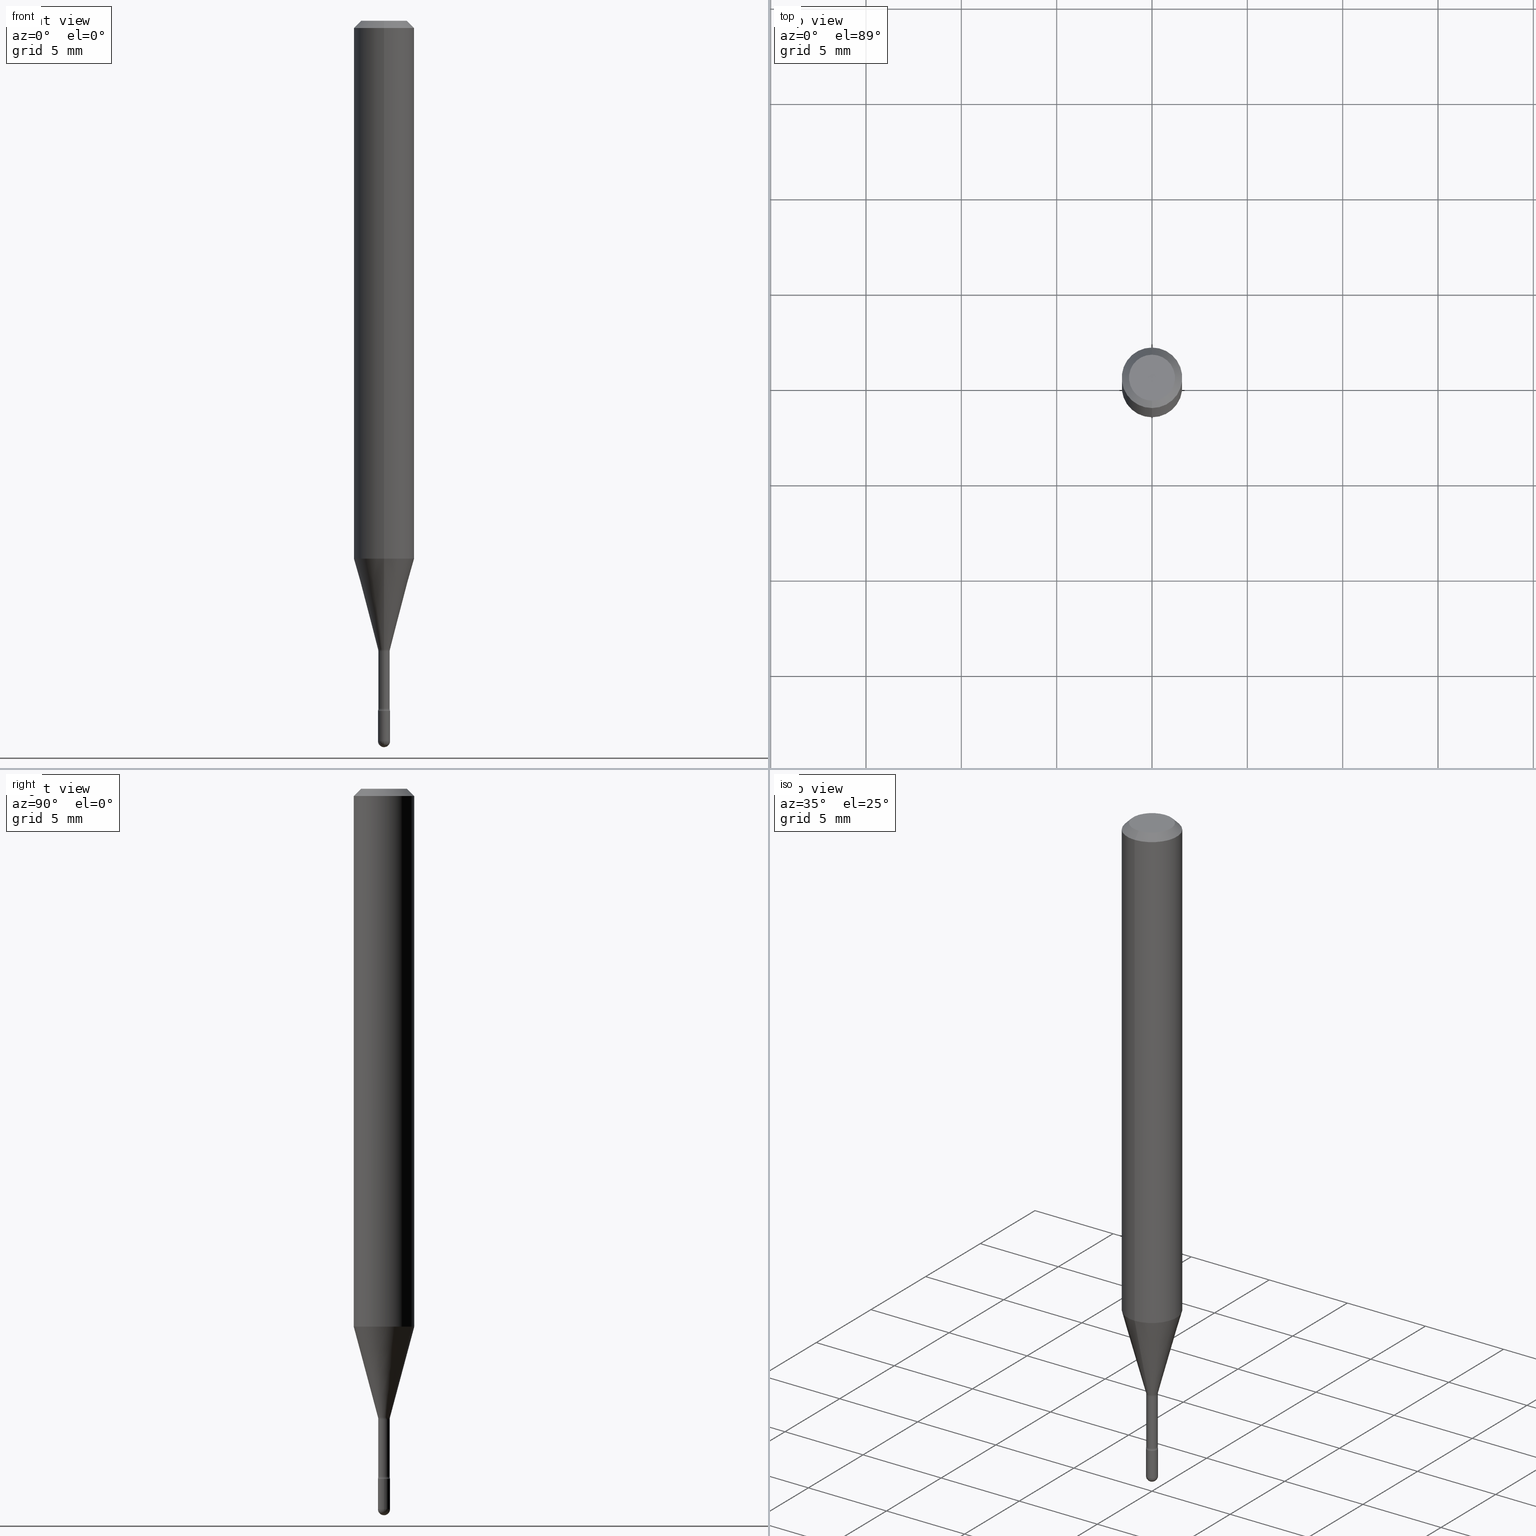
[diagram: canonical four-view strip — front | top / right | iso, engineering-drawing reading convention]
A machine part, canonical four-view strip (front | top / right | iso — engineering-drawing reading convention). The complete STEP part file that produces these views, byte-faithful:
ISO-10303-21;
HEADER;
FILE_DESCRIPTION (( 'STEP AP203' ),
    '1' );
FILE_NAME ('03700.STEP',
    '2024-04-09T20:12:33',
    ( '' ),
    ( '' ),
    'SwSTEP 2.0',
    'SolidWorks 2023',
    '' );
FILE_SCHEMA (( 'CONFIG_CONTROL_DESIGN' ));
ENDSEC;

DATA;
#1 = DIRECTION ( 'NONE',  ( -2.445362175932988378E-29, 3.491634039433238901E-15, 1.000000000000000000 ) ) ;
#2 = ORIENTED_EDGE ( 'NONE', *, *, #303, .F. ) ;
#3 = CARTESIAN_POINT ( 'NONE',  ( 8.348877145184650657E-17, 0.01174999999999545332, -1.301974787463811012 ) ) ;
#4 = DIRECTION ( 'NONE',  ( 0.000000000000000000, 0.000000000000000000, 1.000000000000000000 ) ) ;
#5 = DIRECTION ( 'NONE',  ( -2.445362175932988378E-29, 3.491634039433238901E-15, 1.000000000000000000 ) ) ;
#6 = ORIENTED_EDGE ( 'NONE', *, *, #193, .T. ) ;
#7 = CYLINDRICAL_SURFACE ( 'NONE', #492, 0.01250000000000000243 ) ;
#8 = ORIENTED_EDGE ( 'NONE', *, *, #446, .T. ) ;
#9 = ORIENTED_EDGE ( 'NONE', *, *, #419, .F. ) ;
#10 = EDGE_CURVE ( 'NONE', #212, #291, #296, .T. ) ;
#11 =( NAMED_UNIT ( * ) SI_UNIT ( $, .STERADIAN. ) SOLID_ANGLE_UNIT ( ) );
#12 = DIRECTION ( 'NONE',  ( -6.982962677686265922E-15, -1.000000000000000000, 0.000000000000000000 ) ) ;
#13 = DIRECTION ( 'NONE',  ( 6.982962677686265922E-15, 1.000000000000000000, -3.483106191921935554E-15 ) ) ;
#14 = CARTESIAN_POINT ( 'NONE',  ( 8.728703347111317935E-17, 0.01249999999999502551, -1.425000000000000266 ) ) ;
#15 = CARTESIAN_POINT ( 'NONE',  ( 3.473339087963991292E-29, -4.959007687372092628E-15, -1.420316251501201332 ) ) ;
#16 = DATE_AND_TIME ( #540, #96 ) ;
#17 = EDGE_CURVE ( 'NONE', #449, #288, #316, .T. ) ;
#18 = AXIS2_PLACEMENT_3D ( 'NONE', #382, #4, #266 ) ;
#19 = APPROVAL_DATE_TIME ( #356, #76 ) ;
#20 = EDGE_CURVE ( 'NONE', #291, #497, #259, .T. ) ;
#21 = CALENDAR_DATE ( 2024, 9, 4 ) ;
#22 = ORIENTED_EDGE ( 'NONE', *, *, #286, .F. ) ;
#23 = CIRCLE ( 'NONE', #59, 0.01250000000000000243 ) ;
#24 = ORIENTED_EDGE ( 'NONE', *, *, #189, .F. ) ;
#25 = AXIS2_PLACEMENT_3D ( 'NONE', #119, #439, #289 ) ;
#26 = EDGE_LOOP ( 'NONE', ( #24, #69, #164, #79 ) ) ;
#27 = CARTESIAN_POINT ( 'NONE',  ( 3.316907271900976096E-16, 0.04749999999999999362, 3.181419317578622669E-17 ) ) ;
#28 = DIRECTION ( 'NONE',  ( 1.000000000000000000, -6.982962677686265922E-15, 4.883557194083112340E-29 ) ) ;
#29 = ADVANCED_FACE ( 'NONE', ( #354 ), #408, .T. ) ;
#30 = VERTEX_POINT ( 'NONE', #185 ) ;
#31 = CIRCLE ( 'NONE', #39, 0.01500000000000001853 ) ;
#32 = CIRCLE ( 'NONE', #341, 0.01174999999999999482 ) ;
#33 = VERTEX_POINT ( 'NONE', #346 ) ;
#34 = DIRECTION ( 'NONE',  ( -6.982962677686265922E-15, -1.000000000000000000, 4.370956789862821150E-15 ) ) ;
#35 = CC_DESIGN_DATE_AND_TIME_ASSIGNMENT ( #448, #106, ( #543 ) ) ;
#36 = DIRECTION ( 'NONE',  ( -2.445362175932988378E-29, 3.491634039433238901E-15, 1.000000000000000000 ) ) ;
#37 = EDGE_CURVE ( 'NONE', #467, #414, #210, .T. ) ;
#38 = CARTESIAN_POINT ( 'NONE',  ( 2.022777484196571677E-45, -2.889700301407352893E-31, -8.273977879351593890E-17 ) ) ;
#39 = AXIS2_PLACEMENT_3D ( 'NONE', #248, #426, #43 ) ;
#40 = LENGTH_MEASURE_WITH_UNIT ( LENGTH_MEASURE( 0.02539999999999999897 ), #299 );
#41 = AXIS2_PLACEMENT_3D ( 'NONE', #519, #565, #515 ) ;
#42 = CARTESIAN_POINT ( 'NONE',  ( 3.183938729182273285E-29, -4.545820674074166863E-15, -1.301974787463811012 ) ) ;
#43 = DIRECTION ( 'NONE',  ( -6.982962677686265133E-15, -1.000000000000000000, 0.000000000000000000 ) ) ;
#44 = PERSON ( 'UNSPECIFIED', 'UNSPECIFIED', 'UNSPECIFIED', ('UNSPECIFIED'), ('UNSPECIFIED'), ('UNSPECIFIED') ) ;
#45 = VERTEX_POINT ( 'NONE', #201 ) ;
#46 = CC_DESIGN_PERSON_AND_ORGANIZATION_ASSIGNMENT ( #353, #140, ( #92 ) ) ;
#47 = VERTEX_POINT ( 'NONE', #566 ) ;
#48 = AXIS2_PLACEMENT_3D ( 'NONE', #507, #234, #360 ) ;
#49 = AXIS2_PLACEMENT_3D ( 'NONE', #465, #244, #68 ) ;
#50 = FACE_OUTER_BOUND ( 'NONE', #86, .T. ) ;
#51 = DIRECTION ( 'NONE',  ( 1.000000000000000000, -7.105427357601001070E-15, 4.926317378584971199E-29 ) ) ;
#52 = DIRECTION ( 'NONE',  ( -6.982962677686265922E-15, -1.000000000000000000, 0.000000000000000000 ) ) ;
#53 = DIRECTION ( 'NONE',  ( -2.445362175932988378E-29, 3.491634039433238901E-15, 1.000000000000000000 ) ) ;
#54 = DIRECTION ( 'NONE',  ( -2.445468806185136597E-29, 3.491481338843145583E-15, 1.000000000000000000 ) ) ;
#55 = EDGE_CURVE ( 'NONE', #277, #226, #23, .T. ) ;
#56 = SECURITY_CLASSIFICATION_LEVEL ( 'unclassified' ) ;
#57 = COORDINATED_UNIVERSAL_TIME_OFFSET ( 5, 0, .BEHIND. ) ;
#58 = ORIENTED_EDGE ( 'NONE', *, *, #411, .F. ) ;
#59 = AXIS2_PLACEMENT_3D ( 'NONE', #372, #334, #285 ) ;
#60 = CARTESIAN_POINT ( 'NONE',  ( 4.364351673553919652E-16, 0.06249999999999995143, -0.01500000000000030129 ) ) ;
#61 = PRODUCT_DEFINITION_FORMATION_WITH_SPECIFIED_SOURCE ( 'ANY', '', #92, .NOT_KNOWN. ) ;
#62 = CARTESIAN_POINT ( 'NONE',  ( -8.204981146281360131E-17, -0.01174999999999999656, 5.191000988545865636E-16 ) ) ;
#63 = ORIENTED_EDGE ( 'NONE', *, *, #303, .T. ) ;
#64 = APPLICATION_PROTOCOL_DEFINITION ( 'international standard', 'config_control_design', 1994, #547 ) ;
#65 = DIRECTION ( 'NONE',  ( 2.445362175932988378E-29, -3.491634039433238901E-15, -1.000000000000000000 ) ) ;
#66 = PLANE ( 'NONE',  #207 ) ;
#67 = ADVANCED_FACE ( 'NONE', ( #423 ), #524, .F. ) ;
#68 = DIRECTION ( 'NONE',  ( 6.982962677686265922E-15, 1.000000000000000000, -3.483106191921935554E-15 ) ) ;
#69 = ORIENTED_EDGE ( 'NONE', *, *, #479, .F. ) ;
#70 = CARTESIAN_POINT ( 'NONE',  ( 3.473187639283963661E-29, -4.959224570501815835E-15, -1.420316251501201332 ) ) ;
#71 = MANIFOLD_SOLID_BREP ( 'Body-Move/Copy2[2]', #85 ) ;
#72 = ORIENTED_EDGE ( 'NONE', *, *, #89, .T. ) ;
#73 = AXIS2_PLACEMENT_3D ( 'NONE', #15, #399, #300 ) ;
#74 = AXIS2_PLACEMENT_3D ( 'NONE', #514, #161, #246 ) ;
#75 = LINE ( 'NONE', #274, #146 ) ;
#76 = APPROVAL ( #188, 'UNSPECIFIED' ) ;
#77 = DIRECTION ( 'NONE',  ( 1.000000000000000000, -6.982962677686292743E-15, 0.000000000000000000 ) ) ;
#78 = DIRECTION ( 'NONE',  ( -6.982962677686265922E-15, -1.000000000000000000, 3.483106191921935554E-15 ) ) ;
#79 = ORIENTED_EDGE ( 'NONE', *, *, #385, .T. ) ;
#80 = ORIENTED_EDGE ( 'NONE', *, *, #327, .T. ) ;
#81 = DIRECTION ( 'NONE',  ( -2.445468806185136597E-29, 3.491481338843145583E-15, 1.000000000000000000 ) ) ;
#82 = CARTESIAN_POINT ( 'NONE',  ( 2.656048273965166204E-16, 0.01226111260565944903, -1.298092501787273090 ) ) ;
#83 = EDGE_LOOP ( 'NONE', ( #436, #115, #88, #472 ) ) ;
#84 = CARTESIAN_POINT ( 'NONE',  ( 3.183938729182273285E-29, -4.545820674074166863E-15, -1.301974787463811012 ) ) ;
#85 = CLOSED_SHELL ( 'NONE', ( #67, #310, #262, #29, #561, #364, #431, #154, #396, #383, #544, #516, #330, #209 ) ) ;
#86 = EDGE_LOOP ( 'NONE', ( #169, #253, #151, #149 ) ) ;
#87 = DIRECTION ( 'NONE',  ( -2.445362175932988378E-29, 3.491634039433238901E-15, 1.000000000000000000 ) ) ;
#88 = ORIENTED_EDGE ( 'NONE', *, *, #385, .F. ) ;
#89 = EDGE_CURVE ( 'NONE', #279, #467, #125, .T. ) ;
#90 = CARTESIAN_POINT ( 'NONE',  ( 3.637634849200391024E-29, -5.193578491529179010E-15, -1.487500000000000266 ) ) ;
#91 = CARTESIAN_POINT ( 'NONE',  ( 3.473187639283963661E-29, -4.959224570501815835E-15, -1.420316251501201332 ) ) ;
#92 = PRODUCT ( '03700', '03700', '', ( #539 ) ) ;
#93 = CARTESIAN_POINT ( 'NONE',  ( 8.712044494294306372E-17, 0.01226111260565944557, -1.298092501787273090 ) ) ;
#94 = CC_DESIGN_PERSON_AND_ORGANIZATION_ASSIGNMENT ( #269, #494, ( #61 ) ) ;
#95 = AXIS2_PLACEMENT_3D ( 'NONE', #90, #174, #518 ) ;
#96 = LOCAL_TIME ( 16, 12, 33.00000000000000000, #57 ) ;
#97 = EDGE_CURVE ( 'NONE', #467, #279, #197, .T. ) ;
#98 = CARTESIAN_POINT ( 'NONE',  ( 3.637634849200391024E-29, -5.193578491529179010E-15, -1.487500000000000266 ) ) ;
#99 = COORDINATED_UNIVERSAL_TIME_OFFSET ( 5, 0, .BEHIND. ) ;
#100 = CALENDAR_DATE ( 2024, 9, 4 ) ;
#101 = AXIS2_PLACEMENT_3D ( 'NONE', #336, #36, #78 ) ;
#102 = AXIS2_PLACEMENT_3D ( 'NONE', #107, #447, #138 ) ;
#103 = APPROVAL_PERSON_ORGANIZATION ( #398, #555, #533 ) ;
#104 = PERSON_AND_ORGANIZATION_ROLE ( 'creator' ) ;
#105 = ORIENTED_EDGE ( 'NONE', *, *, #459, .F. ) ;
#106 = DATE_TIME_ROLE ( 'creation_date' ) ;
#107 = CARTESIAN_POINT ( 'NONE',  ( 3.484793048813820547E-29, -4.975360907851483175E-15, -1.425000000000000266 ) ) ;
#108 = ORIENTED_EDGE ( 'NONE', *, *, #143, .T. ) ;
#109 = VECTOR ( 'NONE', #333, 39.37007874015748143 ) ;
#110 = EDGE_CURVE ( 'NONE', #147, #155, #295, .T. ) ;
#111 = DIRECTION ( 'NONE',  ( 6.982962677686265922E-15, 1.000000000000000000, 0.000000000000000000 ) ) ;
#112 = ORIENTED_EDGE ( 'NONE', *, *, #97, .F. ) ;
#113 = ORIENTED_EDGE ( 'NONE', *, *, #367, .T. ) ;
#114 = CIRCLE ( 'NONE', #314, 0.01250000000000000243 ) ;
#115 = ORIENTED_EDGE ( 'NONE', *, *, #110, .T. ) ;
#116 = DIRECTION ( 'NONE',  ( -2.445362175932988378E-29, 3.491634039433238901E-15, 1.000000000000000000 ) ) ;
#117 = DIRECTION ( 'NONE',  ( -2.445362175932988378E-29, 3.491634039433238901E-15, 1.000000000000000000 ) ) ;
#118 = ORIENTED_EDGE ( 'NONE', *, *, #538, .T. ) ;
#119 = CARTESIAN_POINT ( 'NONE',  ( -1.169113584055446105E-44, 1.669184350826100908E-30, 4.780733988912460139E-16 ) ) ;
#120 = DIRECTION ( 'NONE',  ( -2.445362175932988378E-29, 3.491634039433238901E-15, 1.000000000000000000 ) ) ;
#121 = ORIENTED_EDGE ( 'NONE', *, *, #10, .F. ) ;
#122 = CARTESIAN_POINT ( 'NONE',  ( -8.204981146277886678E-17, -0.01175000000000495440, -1.420316251501201332 ) ) ;
#123 = DIRECTION ( 'NONE',  ( -6.982962677686265922E-15, -1.000000000000000000, 0.000000000000000000 ) ) ;
#124 = EDGE_CURVE ( 'NONE', #45, #508, #267, .T. ) ;
#125 = CIRCLE ( 'NONE', #331, 0.06250000000000000000 ) ;
#126 = LINE ( 'NONE', #305, #109 ) ;
#127 = CONICAL_SURFACE ( 'NONE', #49, 0.06250000000000000000, 0.7853981633974483900 ) ;
#128 = CARTESIAN_POINT ( 'NONE',  ( 3.174306304732822436E-29, -4.532463965573495143E-15, -1.298092501787273090 ) ) ;
#129 = FACE_OUTER_BOUND ( 'NONE', #430, .T. ) ;
#130 = CARTESIAN_POINT ( 'NONE',  ( -8.561889171222842652E-17, -0.01226111260566851296, -1.298092501787273090 ) ) ;
#131 = CARTESIAN_POINT ( 'NONE',  ( 3.637634849200391024E-29, -5.193578491529179010E-15, -1.487500000000000266 ) ) ;
#132 = DIRECTION ( 'NONE',  ( -2.445362175932988378E-29, 3.491634039433238901E-15, 1.000000000000000000 ) ) ;
#133 = DIRECTION ( 'NONE',  ( -6.982962677686265922E-15, -1.000000000000000000, 0.000000000000000000 ) ) ;
#134 = CC_DESIGN_PERSON_AND_ORGANIZATION_ASSIGNMENT ( #318, #104, ( #543 ) ) ;
#135 = DIRECTION ( 'NONE',  ( -6.982962677686265922E-15, -1.000000000000000000, 3.491634039433237323E-15 ) ) ;
#136 = AXIS2_PLACEMENT_3D ( 'NONE', #261, #54, #532 ) ;
#137 = APPROVAL_PERSON_ORGANIZATION ( #351, #503, #186 ) ;
#138 = DIRECTION ( 'NONE',  ( 1.000000000000000000, -6.982962677686294321E-15, 0.000000000000000000 ) ) ;
#139 = DATE_TIME_ROLE ( 'classification_date' ) ;
#140 = PERSON_AND_ORGANIZATION_ROLE ( 'design_owner' ) ;
#141 = ORIENTED_EDGE ( 'NONE', *, *, #97, .T. ) ;
#142 = VERTEX_POINT ( 'NONE', #82 ) ;
#143 = EDGE_CURVE ( 'NONE', #449, #508, #31, .T. ) ;
#144 = PERSON_AND_ORGANIZATION_ROLE ( 'classification_officer' ) ;
#145 = TOROIDAL_SURFACE ( 'NONE', #73, 0.02675000000000001335, 0.01500000000000001679 ) ;
#146 = VECTOR ( 'NONE', #371, 39.37007874015748143 ) ;
#147 = VERTEX_POINT ( 'NONE', #421 ) ;
#148 = DIRECTION ( 'NONE',  ( -6.982962677686265922E-15, -1.000000000000000000, 0.000000000000000000 ) ) ;
#149 = ORIENTED_EDGE ( 'NONE', *, *, #227, .F. ) ;
#150 = EDGE_LOOP ( 'NONE', ( #245, #158, #113, #323 ) ) ;
#151 = ORIENTED_EDGE ( 'NONE', *, *, #17, .T. ) ;
#152 = ORIENTED_EDGE ( 'NONE', *, *, #20, .T. ) ;
#153 = CARTESIAN_POINT ( 'NONE',  ( 3.637634849200391024E-29, -5.193578491529179010E-15, -1.487500000000000266 ) ) ;
#154 = ADVANCED_FACE ( 'NONE', ( #529 ), #526, .T. ) ;
#155 = VERTEX_POINT ( 'NONE', #3 ) ;
#156 = CIRCLE ( 'NONE', #224, 0.01500000000000002720 ) ;
#157 = CC_DESIGN_APPROVAL ( #76, ( #543 ) ) ;
#158 = ORIENTED_EDGE ( 'NONE', *, *, #432, .T. ) ;
#159 = VERTEX_POINT ( 'NONE', #564 ) ;
#160 = ORIENTED_EDGE ( 'NONE', *, *, #495, .F. ) ;
#161 = DIRECTION ( 'NONE',  ( -2.445468806185136597E-29, 3.491481338843145583E-15, 1.000000000000000000 ) ) ;
#162 = EDGE_CURVE ( 'NONE', #418, #288, #156, .T. ) ;
#163 = AXIS2_PLACEMENT_3D ( 'NONE', #98, #184, #177 ) ;
#164 = ORIENTED_EDGE ( 'NONE', *, *, #162, .T. ) ;
#165 = AXIS2_PLACEMENT_3D ( 'NONE', #42, #379, #337 ) ;
#166 = SECURITY_CLASSIFICATION ( '', '', #56 ) ;
#167 = DIRECTION ( 'NONE',  ( -6.982962677686265922E-15, -1.000000000000000000, 3.491634039433238901E-15 ) ) ;
#168 = DIRECTION ( 'NONE',  ( 1.000000000000000000, -6.982962677686267499E-15, 4.876176775795936353E-29 ) ) ;
#169 = ORIENTED_EDGE ( 'NONE', *, *, #110, .F. ) ;
#170 = DIRECTION ( 'NONE',  ( 1.000000000000000000, -7.105427357601001070E-15, 4.926317378584971199E-29 ) ) ;
#171 = CARTESIAN_POINT ( 'NONE',  ( 4.440892098500625669E-16, 0.06250000000000000000, 2.598462714266686566E-16 ) ) ;
#172 = ADVANCED_FACE ( 'NONE', ( #129 ), #486, .T. ) ;
#173 = ORIENTED_EDGE ( 'NONE', *, *, #367, .F. ) ;
#174 = DIRECTION ( 'NONE',  ( -1.000000000000000000, 6.982962677686266711E-15, -4.883557194083112901E-29 ) ) ;
#175 = DIRECTION ( 'NONE',  ( -4.851104656540964275E-15, -0.7071067811865500152, -0.7071067811865450192 ) ) ;
#176 = DIRECTION ( 'NONE',  ( -1.000000000000000000, 6.982962677686266711E-15, -4.883557194083112901E-29 ) ) ;
#177 = DIRECTION ( 'NONE',  ( -7.105427357601001070E-15, -1.000000000000000000, 0.000000000000000000 ) ) ;
#178 = CIRCLE ( 'NONE', #510, 0.01500000000000001853 ) ;
#179 = FACE_OUTER_BOUND ( 'NONE', #228, .T. ) ;
#180 = AXIS2_PLACEMENT_3D ( 'NONE', #131, #176, #221 ) ;
#181 = EDGE_LOOP ( 'NONE', ( #160, #517, #474, #190 ) ) ;
#182 = CC_DESIGN_SECURITY_CLASSIFICATION ( #166, ( #61 ) ) ;
#183 = SPHERICAL_SURFACE ( 'NONE', #180, 0.01249999999999996947 ) ;
#184 = DIRECTION ( 'NONE',  ( -1.000000000000000000, 7.105427357601001070E-15, -4.926315508542082329E-29 ) ) ;
#185 = CARTESIAN_POINT ( 'NONE',  ( 0.01250000000000000243, -5.171756733161409821E-15, -1.487499999999999822 ) ) ;
#186 = APPROVAL_ROLE ( '' ) ;
#187 = VECTOR ( 'NONE', #450, 39.37007874015748143 ) ;
#188 = APPROVAL_STATUS ( 'not_yet_approved' ) ;
#189 = EDGE_CURVE ( 'NONE', #142, #155, #481, .T. ) ;
#190 = ORIENTED_EDGE ( 'NONE', *, *, #143, .F. ) ;
#191 = AXIS2_PLACEMENT_3D ( 'NONE', #488, #132, #135 ) ;
#192 = TOROIDAL_SURFACE ( 'NONE', #41, 0.02675000000000001335, 0.01500000000000001679 ) ;
#193 = EDGE_CURVE ( 'NONE', #497, #414, #491, .T. ) ;
#194 = ORIENTED_EDGE ( 'NONE', *, *, #453, .T. ) ;
#195 = DIRECTION ( 'NONE',  ( 2.445362175932988098E-29, -3.491634039433238901E-15, -1.000000000000000000 ) ) ;
#196 = CARTESIAN_POINT ( 'NONE',  ( 4.440892098500896347E-16, 0.06249999999999612116, -1.110598421515880174 ) ) ;
#197 = CIRCLE ( 'NONE', #357, 0.06250000000000000000 ) ;
#198 = CIRCLE ( 'NONE', #470, 0.01174999999999999829 ) ;
#199 = EDGE_LOOP ( 'NONE', ( #328, #523, #272, #427 ) ) ;
#200 = EDGE_LOOP ( 'NONE', ( #121, #420, #402, #235 ) ) ;
#201 = CARTESIAN_POINT ( 'NONE',  ( 8.881784197004742293E-17, 0.01249999999999503418, -1.425000000000000266 ) ) ;
#202 = EDGE_LOOP ( 'NONE', ( #415, #72, #437, #412 ) ) ;
#203 = DIRECTION ( 'NONE',  ( -2.445362175932988378E-29, 3.491634039433238901E-15, 1.000000000000000000 ) ) ;
#204 = VECTOR ( 'NONE', #117, 39.37007874015748143 ) ;
#205 = DIRECTION ( 'NONE',  ( -2.445468806185136877E-29, 3.491481338843145188E-15, 1.000000000000000000 ) ) ;
#206 = ORIENTED_EDGE ( 'NONE', *, *, #484, .T. ) ;
#207 = AXIS2_PLACEMENT_3D ( 'NONE', #27, #195, #362 ) ;
#208 = DIRECTION ( 'NONE',  ( -1.000000000000000000, 6.982962677686265922E-15, -4.883557194083112340E-29 ) ) ;
#209 = ADVANCED_FACE ( 'NONE', ( #293 ), #271, .F. ) ;
#210 = LINE ( 'NONE', #475, #505 ) ;
#211 = CARTESIAN_POINT ( 'NONE',  ( 0.01250000000000000243, -8.728703347107835853E-17, 6.095220969744921493E-31 ) ) ;
#212 = VERTEX_POINT ( 'NONE', #251 ) ;
#213 = CARTESIAN_POINT ( 'NONE',  ( -1.169113584055446105E-44, 1.669184350826100908E-30, 4.780733988912460139E-16 ) ) ;
#214 = EDGE_LOOP ( 'NONE', ( #381, #455, #528, #241 ) ) ;
#215 = CARTESIAN_POINT ( 'NONE',  ( -1.169113584055446105E-44, 1.669184350826100908E-30, 4.780733988912460139E-16 ) ) ;
#216 = CARTESIAN_POINT ( 'NONE',  ( -0.01250000000000000243, -4.995651857720318490E-15, -1.487499999999999822 ) ) ;
#217 = CIRCLE ( 'NONE', #349, 0.01174999999999999829 ) ;
#218 = FACE_OUTER_BOUND ( 'NONE', #368, .T. ) ;
#219 = VECTOR ( 'NONE', #175, 39.37007874015748143 ) ;
#220 = CYLINDRICAL_SURFACE ( 'NONE', #525, 0.01174999999999999656 ) ;
#221 = DIRECTION ( 'NONE',  ( 6.982962677686266711E-15, 1.000000000000000000, 0.000000000000000000 ) ) ;
#222 = FACE_OUTER_BOUND ( 'NONE', #181, .T. ) ;
#223 = COORDINATED_UNIVERSAL_TIME_OFFSET ( 5, 0, .BEHIND. ) ;
#224 = AXIS2_PLACEMENT_3D ( 'NONE', #391, #208, #377 ) ;
#225 = ORGANIZATION ( 'UNSPECIFIED', 'UNSPECIFIED', '' ) ;
#226 = VERTEX_POINT ( 'NONE', #428 ) ;
#227 = EDGE_CURVE ( 'NONE', #155, #288, #217, .T. ) ;
#228 = EDGE_LOOP ( 'NONE', ( #405, #105, #108, #80 ) ) ;
#229 = EDGE_CURVE ( 'NONE', #147, #45, #178, .T. ) ;
#230 = DATE_AND_TIME ( #347, #462 ) ;
#231 = VECTOR ( 'NONE', #406, 39.37007874015748143 ) ;
#232 = AXIS2_PLACEMENT_3D ( 'NONE', #509, #369, #77 ) ;
#233 = EDGE_LOOP ( 'NONE', ( #8, #320 ) ) ;
#234 = DIRECTION ( 'NONE',  ( -2.445362175932988378E-29, 3.491634039433238901E-15, 1.000000000000000000 ) ) ;
#235 = ORIENTED_EDGE ( 'NONE', *, *, #20, .F. ) ;
#236 = EDGE_CURVE ( 'NONE', #47, #226, #237, .T. ) ;
#237 = CIRCLE ( 'NONE', #163, 0.01249999999999996947 ) ;
#238 = CIRCLE ( 'NONE', #482, 0.01250000000000000243 ) ;
#239 = DIRECTION ( 'NONE',  ( -2.445362175932988378E-29, 3.491634039433238901E-15, 1.000000000000000000 ) ) ;
#240 = CARTESIAN_POINT ( 'NONE',  ( -4.364351673553912750E-16, -0.06250000000000005551, -0.01499999999999986587 ) ) ;
#241 = ORIENTED_EDGE ( 'NONE', *, *, #538, .F. ) ;
#242 = CARTESIAN_POINT ( 'NONE',  ( 2.715815372625813924E-29, -3.877803252705670068E-15, -1.110598421515879952 ) ) ;
#243 = PRODUCT_RELATED_PRODUCT_CATEGORY ( 'detail', '', ( #92 ) ) ;
#244 = DIRECTION ( 'NONE',  ( 2.445362175932988378E-29, -3.491634039433238901E-15, -1.000000000000000000 ) ) ;
#245 = ORIENTED_EDGE ( 'NONE', *, *, #484, .F. ) ;
#246 = DIRECTION ( 'NONE',  ( 1.000000000000000000, -6.982962677686294321E-15, 0.000000000000000000 ) ) ;
#247 = ADVANCED_FACE ( 'NONE', ( #493 ), #345, .T. ) ;
#248 = CARTESIAN_POINT ( 'NONE',  ( -1.867942516280729759E-16, -0.02675000000000497119, -1.420316251501201332 ) ) ;
#249 = AXIS2_PLACEMENT_3D ( 'NONE', #287, #374, #562 ) ;
#250 = DIRECTION ( 'NONE',  ( 1.000000000000000000, -6.982962677686292743E-15, 0.000000000000000000 ) ) ;
#251 = CARTESIAN_POINT ( 'NONE',  ( -3.773273898774340269E-16, -0.04749999999999999362, 8.311283807956289658E-17 ) ) ;
#252 = DIRECTION ( 'NONE',  ( -2.445468806185136597E-29, 3.491481338843145583E-15, 1.000000000000000000 ) ) ;
#253 = ORIENTED_EDGE ( 'NONE', *, *, #495, .T. ) ;
#254 = DIRECTION ( 'NONE',  ( -2.445362175932988378E-29, 3.491634039433238901E-15, 1.000000000000000000 ) ) ;
#255 = DIRECTION ( 'NONE',  ( -6.982962677686265922E-15, -1.000000000000000000, 3.491634039433238901E-15 ) ) ;
#256 = CARTESIAN_POINT ( 'NONE',  ( 3.484641100704509237E-29, -4.975578506192366174E-15, -1.425000000000000266 ) ) ;
#257 = FACE_OUTER_BOUND ( 'NONE', #150, .T. ) ;
#258 = APPROVAL_PERSON_ORGANIZATION ( #260, #76, #407 ) ;
#259 = LINE ( 'NONE', #60, #231 ) ;
#260 = PERSON_AND_ORGANIZATION ( #44, #225 ) ;
#261 = CARTESIAN_POINT ( 'NONE',  ( 0.000000000000000000, 0.000000000000000000, 0.000000000000000000 ) ) ;
#262 = ADVANCED_FACE ( 'NONE', ( #222 ), #145, .F. ) ;
#263 = ORIENTED_EDGE ( 'NONE', *, *, #278, .F. ) ;
#264 = DIRECTION ( 'NONE',  ( -2.445362175932988378E-29, 3.491634039433238901E-15, 1.000000000000000000 ) ) ;
#265 = ADVANCED_BREP_SHAPE_REPRESENTATION ( '03700', ( #468, #71, #18 ), #511 ) ;
#266 = DIRECTION ( 'NONE',  ( 1.000000000000000000, 0.000000000000000000, 0.000000000000000000 ) ) ;
#267 = CIRCLE ( 'NONE', #249, 0.01250000000000000069 ) ;
#268 = CIRCLE ( 'NONE', #232, 0.01250000000000000243 ) ;
#269 = PERSON_AND_ORGANIZATION ( #44, #225 ) ;
#270 = COORDINATED_UNIVERSAL_TIME_OFFSET ( 5, 0, .BEHIND. ) ;
#271 = TOROIDAL_SURFACE ( 'NONE', #416, 0.02674999999999999947, 0.01500000000000002547 ) ;
#272 = ORIENTED_EDGE ( 'NONE', *, *, #227, .T. ) ;
#273 = EDGE_LOOP ( 'NONE', ( #9, #2, #152, #6 ) ) ;
#274 = CARTESIAN_POINT ( 'NONE',  ( -8.561889171222842652E-17, -0.01226111260566851296, -1.298092501787273090 ) ) ;
#275 = AXIS2_PLACEMENT_3D ( 'NONE', #434, #438, #392 ) ;
#276 = CARTESIAN_POINT ( 'NONE',  ( -8.204981146278178803E-17, -0.01175000000000454500, -1.301974787463811012 ) ) ;
#277 = VERTEX_POINT ( 'NONE', #216 ) ;
#278 = EDGE_CURVE ( 'NONE', #47, #33, #389, .T. ) ;
#279 = VERTEX_POINT ( 'NONE', #196 ) ;
#280 = CIRCLE ( 'NONE', #48, 0.04749999999999999362 ) ;
#281 = FACE_OUTER_BOUND ( 'NONE', #273, .T. ) ;
#282 = CONICAL_SURFACE ( 'NONE', #275, 0.01226111260566397840, 0.2617993877991499629 ) ;
#283 = DIRECTION ( 'NONE',  ( -2.445362175932988378E-29, 3.491634039433238901E-15, 1.000000000000000000 ) ) ;
#284 = CC_DESIGN_PERSON_AND_ORGANIZATION_ASSIGNMENT ( #496, #144, ( #166 ) ) ;
#285 = DIRECTION ( 'NONE',  ( 1.000000000000000000, -6.982962677686292743E-15, 0.000000000000000000 ) ) ;
#286 = EDGE_CURVE ( 'NONE', #414, #497, #469, .T. ) ;
#287 = CARTESIAN_POINT ( 'NONE',  ( 3.484641100704509237E-29, -4.975578506192366174E-15, -1.425000000000000266 ) ) ;
#288 = VERTEX_POINT ( 'NONE', #276 ) ;
#289 = DIRECTION ( 'NONE',  ( -6.982962677686265922E-15, -1.000000000000000000, 3.491634039433238901E-15 ) ) ;
#290 = DIRECTION ( 'NONE',  ( -2.438088387897960049E-29, 3.491481338843145188E-15, 1.000000000000000000 ) ) ;
#291 = VERTEX_POINT ( 'NONE', #464 ) ;
#292 = CARTESIAN_POINT ( 'NONE',  ( 3.637634849200390463E-29, -5.193578491529179010E-15, -1.487499999999999822 ) ) ;
#293 = FACE_OUTER_BOUND ( 'NONE', #26, .T. ) ;
#294 = DIRECTION ( 'NONE',  ( 1.839019923739597949E-15, 0.2588190451025246253, 0.9659258262890670910 ) ) ;
#295 = LINE ( 'NONE', #512, #204 ) ;
#296 = CIRCLE ( 'NONE', #534, 0.04749999999999999362 ) ;
#297 = CARTESIAN_POINT ( 'NONE',  ( 3.484793048813820547E-29, -4.975360907851483175E-15, -1.425000000000000266 ) ) ;
#298 = AXIS2_PLACEMENT_3D ( 'NONE', #297, #290, #477 ) ;
#299 =( LENGTH_UNIT ( ) NAMED_UNIT ( * ) SI_UNIT ( $, .METRE. ) );
#300 = DIRECTION ( 'NONE',  ( -6.982962677686266711E-15, -1.000000000000000000, 3.491634039433238507E-15 ) ) ;
#301 = LINE ( 'NONE', #489, #219 ) ;
#302 = DIRECTION ( 'NONE',  ( -2.445362175932988098E-29, 3.491634039433238901E-15, 1.000000000000000000 ) ) ;
#303 = EDGE_CURVE ( 'NONE', #291, #212, #280, .T. ) ;
#304 = ORIENTED_EDGE ( 'NONE', *, *, #537, .T. ) ;
#305 = CARTESIAN_POINT ( 'NONE',  ( -0.01250000000000000243, 8.881784197001254049E-17, -6.148668862818633278E-31 ) ) ;
#306 = APPLICATION_CONTEXT ( 'configuration controlled 3d designs of mechanical parts and assemblies' ) ;
#307 = DIRECTION ( 'NONE',  ( 7.105427357600998703E-15, 1.000000000000000000, 0.000000000000000000 ) ) ;
#308 = CONICAL_SURFACE ( 'NONE', #332, 0.01226111260566397840, 0.2617993877991499629 ) ;
#309 = SHAPE_DEFINITION_REPRESENTATION ( #394, #265 ) ;
#310 = ADVANCED_FACE ( 'NONE', ( #366 ), #531, .T. ) ;
#311 = PERSON_AND_ORGANIZATION ( #44, #225 ) ;
#312 = COORDINATED_UNIVERSAL_TIME_OFFSET ( 5, 0, .BEHIND. ) ;
#313 = AXIS2_PLACEMENT_3D ( 'NONE', #153, #28, #111 ) ;
#314 = AXIS2_PLACEMENT_3D ( 'NONE', #292, #478, #250 ) ;
#315 = CC_DESIGN_APPROVAL ( #555, ( #166 ) ) ;
#316 = LINE ( 'NONE', #62, #187 ) ;
#317 = EDGE_LOOP ( 'NONE', ( #413, #458, #329, #340, #194 ) ) ;
#318 = PERSON_AND_ORGANIZATION ( #44, #225 ) ;
#319 = ORIENTED_EDGE ( 'NONE', *, *, #10, .T. ) ;
#320 = ORIENTED_EDGE ( 'NONE', *, *, #461, .T. ) ;
#321 = DIRECTION ( 'NONE',  ( -6.982962677686265922E-15, -1.000000000000000000, 3.483106191921935554E-15 ) ) ;
#322 = CC_DESIGN_PERSON_AND_ORGANIZATION_ASSIGNMENT ( #311, #502, ( #61 ) ) ;
#323 = ORIENTED_EDGE ( 'NONE', *, *, #89, .F. ) ;
#324 = DIRECTION ( 'NONE',  ( -2.445362175932988378E-29, 3.491634039433238901E-15, 1.000000000000000000 ) ) ;
#325 = AXIS2_PLACEMENT_3D ( 'NONE', #91, #87, #133 ) ;
#326 = DIRECTION ( 'NONE',  ( -2.445362175932988378E-29, 3.491634039433238901E-15, 1.000000000000000000 ) ) ;
#327 = EDGE_CURVE ( 'NONE', #508, #45, #460, .T. ) ;
#328 = ORIENTED_EDGE ( 'NONE', *, *, #432, .F. ) ;
#329 = ORIENTED_EDGE ( 'NONE', *, *, #446, .F. ) ;
#330 = ADVANCED_FACE ( 'NONE', ( #50 ), #220, .T. ) ;
#331 = AXIS2_PLACEMENT_3D ( 'NONE', #242, #239, #34 ) ;
#332 = AXIS2_PLACEMENT_3D ( 'NONE', #375, #1, #123 ) ;
#333 = DIRECTION ( 'NONE',  ( -2.445468806185136877E-29, 3.491481338843145188E-15, 1.000000000000000000 ) ) ;
#334 = DIRECTION ( 'NONE',  ( -2.445468806185136597E-29, 3.491481338843145583E-15, 1.000000000000000000 ) ) ;
#335 = ORIENTED_EDGE ( 'NONE', *, *, #479, .T. ) ;
#336 = CARTESIAN_POINT ( 'NONE',  ( 3.668043263899502851E-31, -5.237451059149887318E-17, -0.01500000000000008271 ) ) ;
#337 = DIRECTION ( 'NONE',  ( -6.982962677686266711E-15, -1.000000000000000000, 3.491634039433238507E-15 ) ) ;
#338 = CARTESIAN_POINT ( 'NONE',  ( 3.183799899282394917E-29, -4.546019486392499395E-15, -1.301974787463811012 ) ) ;
#339 = LINE ( 'NONE', #171, #500 ) ;
#340 = ORIENTED_EDGE ( 'NONE', *, *, #342, .F. ) ;
#341 = AXIS2_PLACEMENT_3D ( 'NONE', #70, #541, #148 ) ;
#342 = EDGE_CURVE ( 'NONE', #30, #159, #433, .T. ) ;
#343 = CARTESIAN_POINT ( 'NONE',  ( -0.01250000000000000069, -4.995651857720318490E-15, -1.425000000000000266 ) ) ;
#344 = FACE_OUTER_BOUND ( 'NONE', #553, .T. ) ;
#345 = CYLINDRICAL_SURFACE ( 'NONE', #136, 0.01250000000000000243 ) ;
#346 = CARTESIAN_POINT ( 'NONE',  ( 8.728703347111462148E-17, 0.01249999999999479305, -1.487499999999999822 ) ) ;
#347 = CALENDAR_DATE ( 2024, 9, 4 ) ;
#348 = ADVANCED_FACE ( 'NONE', ( #563 ), #520, .T. ) ;
#349 = AXIS2_PLACEMENT_3D ( 'NONE', #338, #254, #521 ) ;
#350 = AXIS2_PLACEMENT_3D ( 'NONE', #14, #302, #255 ) ;
#351 = PERSON_AND_ORGANIZATION ( #44, #225 ) ;
#352 = APPROVAL_DATE_TIME ( #16, #503 ) ;
#353 = PERSON_AND_ORGANIZATION ( #44, #225 ) ;
#354 = FACE_OUTER_BOUND ( 'NONE', #200, .T. ) ;
#355 = ORIENTED_EDGE ( 'NONE', *, *, #55, .T. ) ;
#356 = DATE_AND_TIME ( #456, #401 ) ;
#357 = AXIS2_PLACEMENT_3D ( 'NONE', #473, #120, #388 ) ;
#358 = CIRCLE ( 'NONE', #425, 0.01226111260566397840 ) ;
#359 = EDGE_LOOP ( 'NONE', ( #63, #319 ) ) ;
#360 = DIRECTION ( 'NONE',  ( -6.982962677686266711E-15, -1.000000000000000000, 3.491634039433238901E-15 ) ) ;
#361 = ORIENTED_EDGE ( 'NONE', *, *, #236, .T. ) ;
#362 = DIRECTION ( 'NONE',  ( 6.982962677686265922E-15, 1.000000000000000000, -3.491634039433238901E-15 ) ) ;
#363 = CARTESIAN_POINT ( 'NONE',  ( 3.668043263899502851E-31, -5.237451059149887318E-17, -0.01500000000000008271 ) ) ;
#364 = ADVANCED_FACE ( 'NONE', ( #380 ), #308, .T. ) ;
#365 = VECTOR ( 'NONE', #205, 39.37007874015748143 ) ;
#366 = FACE_OUTER_BOUND ( 'NONE', #83, .T. ) ;
#367 = EDGE_CURVE ( 'NONE', #418, #467, #75, .T. ) ;
#368 = EDGE_LOOP ( 'NONE', ( #141, #304, #22, #457 ) ) ;
#369 = DIRECTION ( 'NONE',  ( -2.445468806185136597E-29, 3.491481338843145583E-15, 1.000000000000000000 ) ) ;
#370 = ORIENTED_EDGE ( 'NONE', *, *, #55, .F. ) ;
#371 = DIRECTION ( 'NONE',  ( -1.807323732225328167E-15, -0.2588190451025179084, 0.9659258262890690894 ) ) ;
#372 = CARTESIAN_POINT ( 'NONE',  ( 3.637634849200390463E-29, -5.193578491529179010E-15, -1.487499999999999822 ) ) ;
#373 = DIRECTION ( 'NONE',  ( -6.982962677686266711E-15, -1.000000000000000000, 3.491634039433238507E-15 ) ) ;
#374 = DIRECTION ( 'NONE',  ( -2.445362175932988378E-29, 3.491634039433238901E-15, 1.000000000000000000 ) ) ;
#375 = CARTESIAN_POINT ( 'NONE',  ( 3.174306304732822436E-29, -4.532463965573495143E-15, -1.298092501787273090 ) ) ;
#376 = EDGE_LOOP ( 'NONE', ( #466, #355, #118, #556, #551 ) ) ;
#377 = DIRECTION ( 'NONE',  ( -6.982962677686265133E-15, -1.000000000000000000, 0.000000000000000000 ) ) ;
#378 =( NAMED_UNIT ( * ) PLANE_ANGLE_UNIT ( ) SI_UNIT ( $, .RADIAN. ) );
#379 = DIRECTION ( 'NONE',  ( -2.445362175932988378E-29, 3.491634039433238901E-15, 1.000000000000000000 ) ) ;
#380 = FACE_OUTER_BOUND ( 'NONE', #554, .T. ) ;
#381 = ORIENTED_EDGE ( 'NONE', *, *, #236, .F. ) ;
#382 = CARTESIAN_POINT ( 'NONE',  ( 0.000000000000000000, 0.000000000000000000, 0.000000000000000000 ) ) ;
#383 = ADVANCED_FACE ( 'NONE', ( #463 ), #66, .F. ) ;
#384 = CARTESIAN_POINT ( 'NONE',  ( 1.900701818158615798E-16, 0.02674999999999505204, -1.420316251501201332 ) ) ;
#385 = EDGE_CURVE ( 'NONE', #288, #155, #198, .T. ) ;
#386 =( CONVERSION_BASED_UNIT ( 'INCH', #40 ) LENGTH_UNIT ( ) NAMED_UNIT ( #513 ) );
#387 = FACE_OUTER_BOUND ( 'NONE', #317, .T. ) ;
#388 = DIRECTION ( 'NONE',  ( -6.982962677686265922E-15, -1.000000000000000000, 4.370956789862821150E-15 ) ) ;
#389 = CIRCLE ( 'NONE', #313, 0.01249999999999996947 ) ;
#390 = CIRCLE ( 'NONE', #102, 0.01250000000000000069 ) ;
#391 = CARTESIAN_POINT ( 'NONE',  ( -1.867942516280757616E-16, -0.02675000000000454445, -1.301974787463811012 ) ) ;
#392 = DIRECTION ( 'NONE',  ( -6.982962677686265922E-15, -1.000000000000000000, 0.000000000000000000 ) ) ;
#393 = CARTESIAN_POINT ( 'NONE',  ( 4.440892098500899305E-16, 0.06249999999999995143, -0.01500000000000030129 ) ) ;
#394 = PRODUCT_DEFINITION_SHAPE ( 'NONE', 'NONE',  #543 ) ;
#395 = DIRECTION ( 'NONE',  ( -6.982962677686265922E-15, -1.000000000000000000, 3.491634039433237323E-15 ) ) ;
#396 = ADVANCED_FACE ( 'NONE', ( #281 ), #127, .T. ) ;
#397 = DIRECTION ( 'NONE',  ( 1.000000000000000000, -6.982962677686292743E-15, 0.000000000000000000 ) ) ;
#398 = PERSON_AND_ORGANIZATION ( #44, #225 ) ;
#399 = DIRECTION ( 'NONE',  ( -2.445362175932988378E-29, 3.491634039433238901E-15, 1.000000000000000000 ) ) ;
#400 = AXIS2_PLACEMENT_3D ( 'NONE', #213, #283, #167 ) ;
#401 = LOCAL_TIME ( 16, 12, 33.00000000000000000, #312 ) ;
#402 = ORIENTED_EDGE ( 'NONE', *, *, #286, .T. ) ;
#403 = DIRECTION ( 'NONE',  ( -6.982962677686266711E-15, -1.000000000000000000, 3.491634039433238901E-15 ) ) ;
#404 = APPROVAL_STATUS ( 'not_yet_approved' ) ;
#405 = ORIENTED_EDGE ( 'NONE', *, *, #229, .F. ) ;
#406 = DIRECTION ( 'NONE',  ( 4.937700262164548042E-15, 0.7071067811865451302, -0.7071067811865499042 ) ) ;
#407 = APPROVAL_ROLE ( '' ) ;
#408 = CONICAL_SURFACE ( 'NONE', #499, 0.06250000000000000000, 0.7853981633974483900 ) ;
#409 = CC_DESIGN_APPROVAL ( #503, ( #61 ) ) ;
#410 = UNCERTAINTY_MEASURE_WITH_UNIT (LENGTH_MEASURE( 1.000000000000000082E-05 ), #386, 'distance_accuracy_value', 'NONE');
#411 = EDGE_CURVE ( 'NONE', #33, #277, #268, .T. ) ;
#412 = ORIENTED_EDGE ( 'NONE', *, *, #193, .F. ) ;
#413 = ORIENTED_EDGE ( 'NONE', *, *, #411, .T. ) ;
#414 = VERTEX_POINT ( 'NONE', #240 ) ;
#415 = ORIENTED_EDGE ( 'NONE', *, *, #537, .F. ) ;
#416 = AXIS2_PLACEMENT_3D ( 'NONE', #84, #203, #373 ) ;
#417 = AXIS2_PLACEMENT_3D ( 'NONE', #483, #487, #52 ) ;
#418 = VERTEX_POINT ( 'NONE', #130 ) ;
#419 = EDGE_CURVE ( 'NONE', #212, #414, #301, .T. ) ;
#420 = ORIENTED_EDGE ( 'NONE', *, *, #419, .T. ) ;
#421 = CARTESIAN_POINT ( 'NONE',  ( 8.615330671094698324E-17, 0.01174999999999503525, -1.420316251501201332 ) ) ;
#422 = LINE ( 'NONE', #93, #559 ) ;
#423 = FACE_OUTER_BOUND ( 'NONE', #199, .T. ) ;
#424 = CLOSED_SHELL ( 'NONE', ( #442, #172, #348, #530, #247 ) ) ;
#425 = AXIS2_PLACEMENT_3D ( 'NONE', #128, #5, #12 ) ;
#426 = DIRECTION ( 'NONE',  ( -1.000000000000000000, 6.982962677686265922E-15, -4.883557194083112340E-29 ) ) ;
#427 = ORIENTED_EDGE ( 'NONE', *, *, #162, .F. ) ;
#428 = CARTESIAN_POINT ( 'NONE',  ( -8.881784196997603102E-17, -0.01250000000000517884, -1.487499999999999822 ) ) ;
#429 = APPLICATION_PROTOCOL_DEFINITION ( 'international standard', 'config_control_design', 1994, #306 ) ;
#430 = EDGE_LOOP ( 'NONE', ( #263, #361, #370, #58 ) ) ;
#431 = ADVANCED_FACE ( 'NONE', ( #257 ), #282, .T. ) ;
#432 = EDGE_CURVE ( 'NONE', #142, #418, #358, .T. ) ;
#433 = LINE ( 'NONE', #211, #365 ) ;
#434 = CARTESIAN_POINT ( 'NONE',  ( 3.174306304732822436E-29, -4.532463965573495143E-15, -1.298092501787273090 ) ) ;
#435 = DIRECTION ( 'NONE',  ( -2.445362175932988378E-29, 3.491634039433238901E-15, 1.000000000000000000 ) ) ;
#436 = ORIENTED_EDGE ( 'NONE', *, *, #459, .T. ) ;
#437 = ORIENTED_EDGE ( 'NONE', *, *, #37, .T. ) ;
#438 = DIRECTION ( 'NONE',  ( -2.445362175932988378E-29, 3.491634039433238901E-15, 1.000000000000000000 ) ) ;
#439 = DIRECTION ( 'NONE',  ( -2.445362175932988378E-29, 3.491634039433238901E-15, 1.000000000000000000 ) ) ;
#440 = DIRECTION ( 'NONE',  ( -6.982962677686265133E-15, -1.000000000000000000, 0.000000000000000000 ) ) ;
#441 = AXIS2_PLACEMENT_3D ( 'NONE', #256, #445, #440 ) ;
#442 = ADVANCED_FACE ( 'NONE', ( #387 ), #7, .T. ) ;
#443 = CIRCLE ( 'NONE', #325, 0.01174999999999999482 ) ;
#444 = FACE_OUTER_BOUND ( 'NONE', #214, .T. ) ;
#445 = DIRECTION ( 'NONE',  ( -2.445362175932988378E-29, 3.491634039433238901E-15, 1.000000000000000000 ) ) ;
#446 = EDGE_CURVE ( 'NONE', #159, #504, #451, .T. ) ;
#447 = DIRECTION ( 'NONE',  ( -2.445468806185136597E-29, 3.491481338843145583E-15, 1.000000000000000000 ) ) ;
#448 = DATE_AND_TIME ( #100, #550 ) ;
#449 = VERTEX_POINT ( 'NONE', #122 ) ;
#450 = DIRECTION ( 'NONE',  ( -2.445362175932988378E-29, 3.491634039433238901E-15, 1.000000000000000000 ) ) ;
#451 = CIRCLE ( 'NONE', #74, 0.01250000000000000069 ) ;
#452 = DATE_AND_TIME ( #21, #498 ) ;
#453 = EDGE_CURVE ( 'NONE', #30, #33, #114, .T. ) ;
#454 = APPROVAL_DATE_TIME ( #452, #555 ) ;
#455 = ORIENTED_EDGE ( 'NONE', *, *, #278, .T. ) ;
#456 = CALENDAR_DATE ( 2024, 9, 4 ) ;
#457 = ORIENTED_EDGE ( 'NONE', *, *, #37, .F. ) ;
#458 = ORIENTED_EDGE ( 'NONE', *, *, #552, .T. ) ;
#459 = EDGE_CURVE ( 'NONE', #449, #147, #32, .T. ) ;
#460 = CIRCLE ( 'NONE', #441, 0.01250000000000000069 ) ;
#461 = EDGE_CURVE ( 'NONE', #504, #159, #390, .T. ) ;
#462 = LOCAL_TIME ( 16, 12, 33.00000000000000000, #223 ) ;
#463 = FACE_OUTER_BOUND ( 'NONE', #359, .T. ) ;
#464 = CARTESIAN_POINT ( 'NONE',  ( 3.840629472727447874E-16, 0.04749999999999999362, -2.485923956665947867E-16 ) ) ;
#465 = CARTESIAN_POINT ( 'NONE',  ( 3.668043263899502851E-31, -5.237451059149887318E-17, -0.01500000000000008271 ) ) ;
#466 = ORIENTED_EDGE ( 'NONE', *, *, #552, .F. ) ;
#467 = VERTEX_POINT ( 'NONE', #548 ) ;
#468 = MANIFOLD_SOLID_BREP ( 'Body-Move/Copy2[1]', #424 ) ;
#469 = CIRCLE ( 'NONE', #558, 0.06250000000000000000 ) ;
#470 = AXIS2_PLACEMENT_3D ( 'NONE', #546, #324, #506 ) ;
#471 = CARTESIAN_POINT ( 'NONE',  ( 1.900701818158585969E-16, 0.02674999999999545450, -1.301974787463811012 ) ) ;
#472 = ORIENTED_EDGE ( 'NONE', *, *, #17, .F. ) ;
#473 = CARTESIAN_POINT ( 'NONE',  ( 2.715815372625813924E-29, -3.877803252705670068E-15, -1.110598421515879952 ) ) ;
#474 = ORIENTED_EDGE ( 'NONE', *, *, #124, .T. ) ;
#475 = CARTESIAN_POINT ( 'NONE',  ( -4.364351673553916201E-16, -0.06250000000000000000, 6.963005263558235192E-16 ) ) ;
#476 = CC_DESIGN_DATE_AND_TIME_ASSIGNMENT ( #230, #139, ( #166 ) ) ;
#477 = DIRECTION ( 'NONE',  ( 1.000000000000000000, -6.982962677686265922E-15, 4.876176775795935793E-29 ) ) ;
#478 = DIRECTION ( 'NONE',  ( -2.445468806185136597E-29, 3.491481338843145583E-15, 1.000000000000000000 ) ) ;
#479 = EDGE_CURVE ( 'NONE', #418, #142, #535, .T. ) ;
#480 = CYLINDRICAL_SURFACE ( 'NONE', #25, 0.06250000000000000000 ) ;
#481 = CIRCLE ( 'NONE', #549, 0.01500000000000002720 ) ;
#482 = AXIS2_PLACEMENT_3D ( 'NONE', #527, #252, #397 ) ;
#483 = CARTESIAN_POINT ( 'NONE',  ( 3.174306304732822436E-29, -4.532463965573495143E-15, -1.298092501787273090 ) ) ;
#484 = EDGE_CURVE ( 'NONE', #142, #279, #422, .T. ) ;
#485 = CARTESIAN_POINT ( 'NONE',  ( -8.728703347104355005E-17, -0.01250000000000498802, -1.425000000000000266 ) ) ;
#486 = SPHERICAL_SURFACE ( 'NONE', #95, 0.01249999999999996947 ) ;
#487 = DIRECTION ( 'NONE',  ( -2.445362175932988378E-29, 3.491634039433238901E-15, 1.000000000000000000 ) ) ;
#488 = CARTESIAN_POINT ( 'NONE',  ( -1.169113584055446105E-44, 1.669184350826100908E-30, 4.780733988912460139E-16 ) ) ;
#489 = CARTESIAN_POINT ( 'NONE',  ( -4.287811248607203282E-16, -0.06250000000000005551, -0.01499999999999986587 ) ) ;
#490 = ORIENTED_EDGE ( 'NONE', *, *, #327, .F. ) ;
#491 = CIRCLE ( 'NONE', #101, 0.06250000000000000000 ) ;
#492 = AXIS2_PLACEMENT_3D ( 'NONE', #560, #81, #168 ) ;
#493 = FACE_OUTER_BOUND ( 'NONE', #376, .T. ) ;
#494 = PERSON_AND_ORGANIZATION_ROLE ( 'design_supplier' ) ;
#495 = EDGE_CURVE ( 'NONE', #147, #449, #443, .T. ) ;
#496 = PERSON_AND_ORGANIZATION ( #44, #225 ) ;
#497 = VERTEX_POINT ( 'NONE', #393 ) ;
#498 = LOCAL_TIME ( 16, 12, 33.00000000000000000, #99 ) ;
#499 = AXIS2_PLACEMENT_3D ( 'NONE', #501, #65, #13 ) ;
#500 = VECTOR ( 'NONE', #435, 39.37007874015748143 ) ;
#501 = CARTESIAN_POINT ( 'NONE',  ( 3.668043263899502851E-31, -5.237451059149887318E-17, -0.01500000000000008271 ) ) ;
#502 = PERSON_AND_ORGANIZATION_ROLE ( 'creator' ) ;
#503 = APPROVAL ( #404, 'UNSPECIFIED' ) ;
#504 = VERTEX_POINT ( 'NONE', #343 ) ;
#505 = VECTOR ( 'NONE', #116, 39.37007874015748143 ) ;
#506 = DIRECTION ( 'NONE',  ( -6.982962677686266711E-15, -1.000000000000000000, 0.000000000000000000 ) ) ;
#507 = CARTESIAN_POINT ( 'NONE',  ( 2.022777484196571677E-45, -2.889700301407352893E-31, -8.273977879351593890E-17 ) ) ;
#508 = VERTEX_POINT ( 'NONE', #485 ) ;
#509 = CARTESIAN_POINT ( 'NONE',  ( 3.637634849200390463E-29, -5.193578491529179010E-15, -1.487499999999999822 ) ) ;
#510 = AXIS2_PLACEMENT_3D ( 'NONE', #384, #51, #307 ) ;
#511 =( GEOMETRIC_REPRESENTATION_CONTEXT ( 3 ) GLOBAL_UNCERTAINTY_ASSIGNED_CONTEXT ( ( #410 ) ) GLOBAL_UNIT_ASSIGNED_CONTEXT ( ( #386, #378, #11 ) ) REPRESENTATION_CONTEXT ( 'NONE', 'WORKASPACE' ) );
#512 = CARTESIAN_POINT ( 'NONE',  ( 8.348877145181173506E-17, 0.01174999999999999656, 4.370466989279055135E-16 ) ) ;
#513 = DIMENSIONAL_EXPONENTS ( 1.000000000000000000, 0.000000000000000000, 0.000000000000000000, 0.000000000000000000, 0.000000000000000000, 0.000000000000000000, 0.000000000000000000 ) ;
#514 = CARTESIAN_POINT ( 'NONE',  ( 3.484793048813820547E-29, -4.975360907851483175E-15, -1.425000000000000266 ) ) ;
#515 = DIRECTION ( 'NONE',  ( -6.982962677686266711E-15, -1.000000000000000000, 3.491634039433238507E-15 ) ) ;
#516 = ADVANCED_FACE ( 'NONE', ( #179 ), #192, .F. ) ;
#517 = ORIENTED_EDGE ( 'NONE', *, *, #229, .T. ) ;
#518 = DIRECTION ( 'NONE',  ( 6.982962677686266711E-15, 1.000000000000000000, 0.000000000000000000 ) ) ;
#519 = CARTESIAN_POINT ( 'NONE',  ( 3.473339087963991292E-29, -4.959007687372092628E-15, -1.420316251501201332 ) ) ;
#520 = PLANE ( 'NONE',  #298 ) ;
#521 = DIRECTION ( 'NONE',  ( -6.982962677686266711E-15, -1.000000000000000000, 0.000000000000000000 ) ) ;
#522 = PLANE ( 'NONE',  #350 ) ;
#523 = ORIENTED_EDGE ( 'NONE', *, *, #189, .T. ) ;
#524 = TOROIDAL_SURFACE ( 'NONE', #165, 0.02674999999999999947, 0.01500000000000002547 ) ;
#525 = AXIS2_PLACEMENT_3D ( 'NONE', #215, #53, #395 ) ;
#526 = CYLINDRICAL_SURFACE ( 'NONE', #400, 0.06250000000000000000 ) ;
#527 = CARTESIAN_POINT ( 'NONE',  ( 3.637634849200390463E-29, -5.193578491529179010E-15, -1.487499999999999822 ) ) ;
#528 = ORIENTED_EDGE ( 'NONE', *, *, #453, .F. ) ;
#529 = FACE_OUTER_BOUND ( 'NONE', #202, .T. ) ;
#530 = ADVANCED_FACE ( 'NONE', ( #444 ), #183, .T. ) ;
#531 = CYLINDRICAL_SURFACE ( 'NONE', #191, 0.01174999999999999656 ) ;
#532 = DIRECTION ( 'NONE',  ( 1.000000000000000000, -6.982962677686267499E-15, 4.876176775795936353E-29 ) ) ;
#533 = APPROVAL_ROLE ( '' ) ;
#534 = AXIS2_PLACEMENT_3D ( 'NONE', #38, #264, #403 ) ;
#535 = CIRCLE ( 'NONE', #417, 0.01226111260566397840 ) ;
#536 = DESIGN_CONTEXT ( 'detailed design', #547, 'design' ) ;
#537 = EDGE_CURVE ( 'NONE', #279, #497, #339, .T. ) ;
#538 = EDGE_CURVE ( 'NONE', #226, #30, #238, .T. ) ;
#539 = MECHANICAL_CONTEXT ( 'NONE', #306, 'mechanical' ) ;
#540 = CALENDAR_DATE ( 2024, 9, 4 ) ;
#541 = DIRECTION ( 'NONE',  ( -2.445362175932988378E-29, 3.491634039433238901E-15, 1.000000000000000000 ) ) ;
#542 = APPROVAL_STATUS ( 'not_yet_approved' ) ;
#543 = PRODUCT_DEFINITION ( 'UNKNOWN', '', #61, #536 ) ;
#544 = ADVANCED_FACE ( 'NONE', ( #344 ), #522, .F. ) ;
#545 = ORIENTED_EDGE ( 'NONE', *, *, #124, .F. ) ;
#546 = CARTESIAN_POINT ( 'NONE',  ( 3.183799899282394917E-29, -4.546019486392499395E-15, -1.301974787463811012 ) ) ;
#547 = APPLICATION_CONTEXT ( 'configuration controlled 3d designs of mechanical parts and assemblies' ) ;
#548 = CARTESIAN_POINT ( 'NONE',  ( -4.364351673553645523E-16, -0.06250000000000388578, -1.110598421515879730 ) ) ;
#549 = AXIS2_PLACEMENT_3D ( 'NONE', #471, #170, #557 ) ;
#550 = LOCAL_TIME ( 16, 12, 33.00000000000000000, #270 ) ;
#551 = ORIENTED_EDGE ( 'NONE', *, *, #461, .F. ) ;
#552 = EDGE_CURVE ( 'NONE', #277, #504, #126, .T. ) ;
#553 = EDGE_LOOP ( 'NONE', ( #490, #545 ) ) ;
#554 = EDGE_LOOP ( 'NONE', ( #335, #206, #112, #173 ) ) ;
#555 = APPROVAL ( #542, 'UNSPECIFIED' ) ;
#556 = ORIENTED_EDGE ( 'NONE', *, *, #342, .T. ) ;
#557 = DIRECTION ( 'NONE',  ( 7.105427357600997914E-15, 1.000000000000000000, 0.000000000000000000 ) ) ;
#558 = AXIS2_PLACEMENT_3D ( 'NONE', #363, #326, #321 ) ;
#559 = VECTOR ( 'NONE', #294, 39.37007874015748854 ) ;
#560 = CARTESIAN_POINT ( 'NONE',  ( 0.000000000000000000, 0.000000000000000000, 0.000000000000000000 ) ) ;
#561 = ADVANCED_FACE ( 'NONE', ( #218 ), #480, .T. ) ;
#562 = DIRECTION ( 'NONE',  ( -6.982962677686265133E-15, -1.000000000000000000, 0.000000000000000000 ) ) ;
#563 = FACE_OUTER_BOUND ( 'NONE', #233, .T. ) ;
#564 = CARTESIAN_POINT ( 'NONE',  ( 0.01250000000000000069, -5.062647941322562298E-15, -1.425000000000000266 ) ) ;
#565 = DIRECTION ( 'NONE',  ( -2.445362175932988378E-29, 3.491634039433238901E-15, 1.000000000000000000 ) ) ;
#566 = CARTESIAN_POINT ( 'NONE',  ( 3.668737688208442503E-29, -5.236456604015251240E-15, -1.500000000000000222 ) ) ;
ENDSEC;
END-ISO-10303-21;
